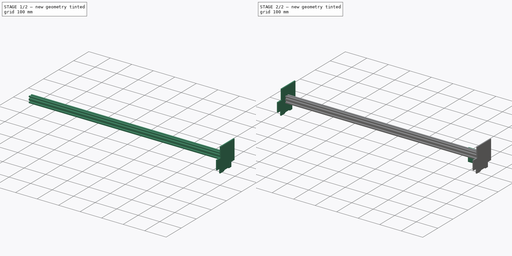
[diagram: build sequence overview — one tinted view per stage of 2, left to right]
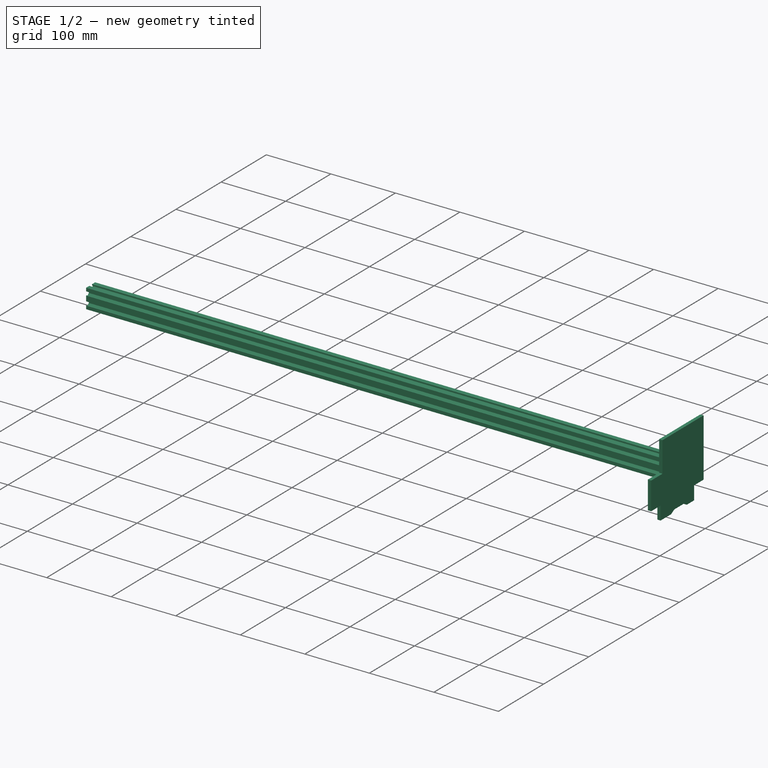
[diagram: stage 1 of 2 — iso view after this stage's code; geometry added in this stage tinted green]
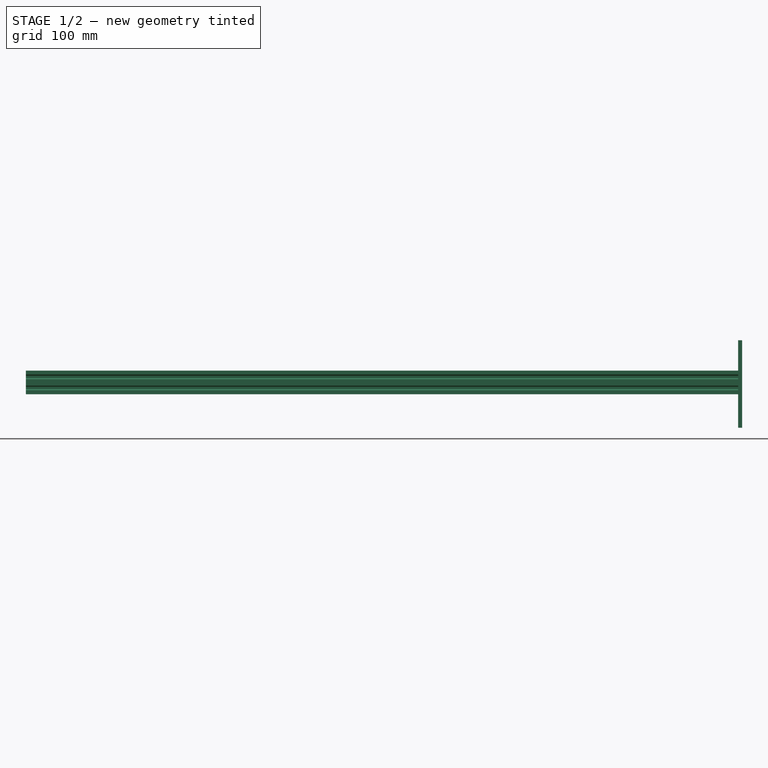
[diagram: stage 1 of 2 — front view after this stage's code; geometry added in this stage tinted green]
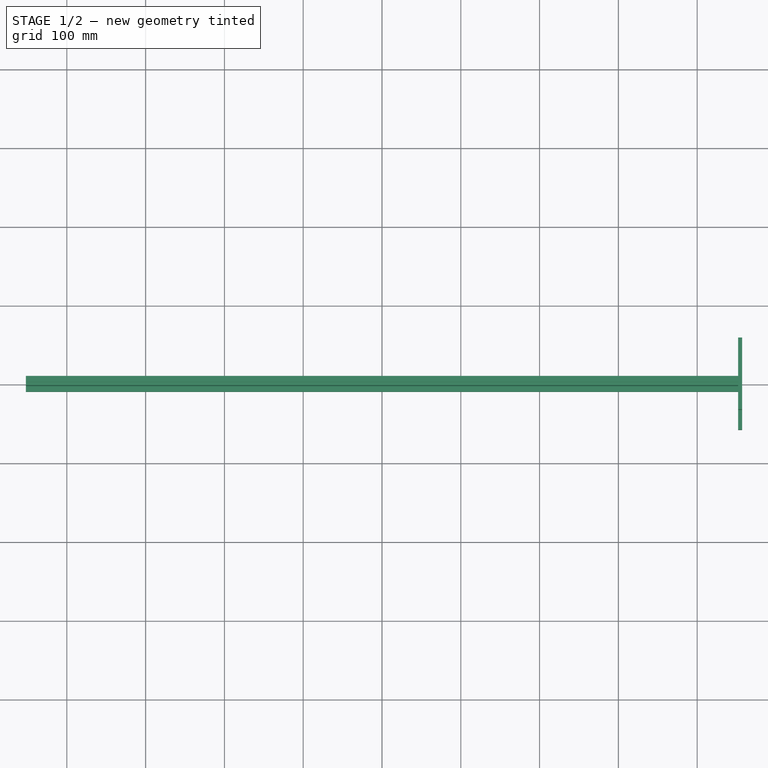
[diagram: stage 1 of 2 — top view after this stage's code; geometry added in this stage tinted green]
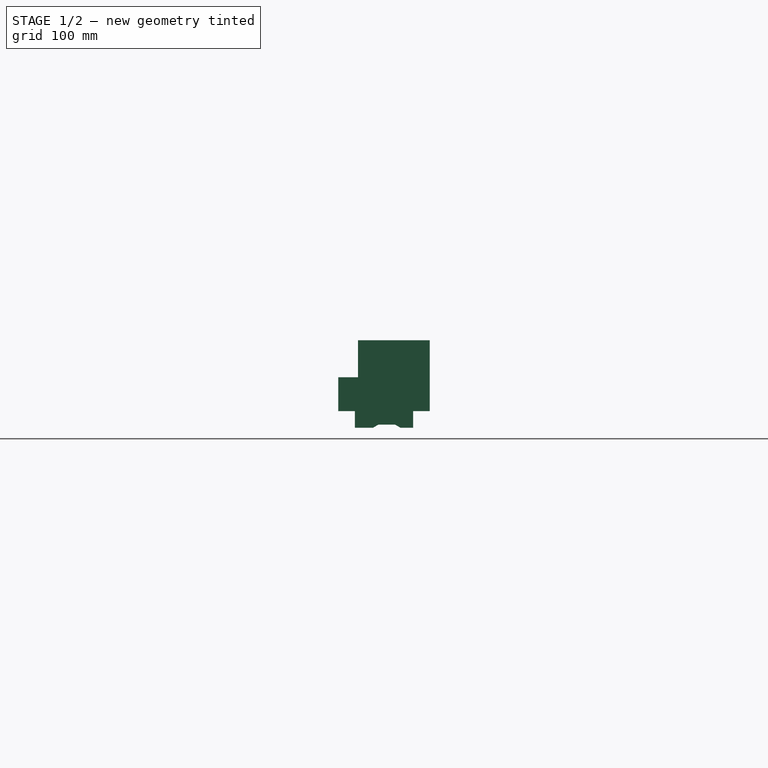
[diagram: stage 1 of 2 — right view after this stage's code; geometry added in this stage tinted green]
FCSTD DOCUMENT  (FreeCAD 1.1R40971 (Git))
Label: x-rail
License: All rights reserved
LicenseURL: http://en.wikipedia.org/wiki/All_rights_reserved
objects: Sketcher::SketchObject×3, PartDesign::Pad×3, PartDesign::Mirrored×1, PartDesign::Body×1, App::DocumentObjectGroup×1, App::Point×1
note: 18 computed .brp shape members not serialized (recipe doc carries the construction recipe); baked Part::Feature solids carry a one-line shape summary decoded from their .brp

FEATURE [Sketcher::SketchObject] Sketch
  ArcFitTolerance = 0
  ExternalTypes = [0]
  FullyConstrained = false
  MakeInternals = false
  MapMode = 5
  Placement = pos=(0,0,0) rot=(0.57735,0.57735,0.57735;2.0944rad)
  sketch-geometry (75):
    g0: LineSegment StartX=-10 StartY=30 StartZ=0 EndX=-3 EndY=30 EndZ=0
    g1: LineSegment StartX=10 StartY=30 StartZ=0 EndX=10 EndY=25 EndZ=0
    g2: LineSegment StartX=10 StartY=0 StartZ=0 EndX=3 EndY=0 EndZ=0
    g3: LineSegment StartX=-10 StartY=0 StartZ=0 EndX=-10 EndY=5 EndZ=0
    g4: LineSegment StartX=-3 StartY=0 StartZ=0 EndX=-3 EndY=1.5 EndZ=0
    g5: LineSegment StartX=-3 StartY=1.5 StartZ=0 EndX=-4.5 EndY=1.5 EndZ=0
    g6: LineSegment StartX=-4.5 StartY=1.5 StartZ=0 EndX=-4.5 EndY=3 EndZ=0
    g7: LineSegment StartX=-4.5 StartY=3 StartZ=0 EndX=-1.5 EndY=6 EndZ=0
    g8: LineSegment StartX=-1.5 StartY=6 StartZ=0 EndX=1.5 EndY=6 EndZ=0
    g9: LineSegment StartX=1.5 StartY=6 StartZ=0 EndX=4.5 EndY=3 EndZ=0
    g10: LineSegment StartX=4.5 StartY=3 StartZ=0 EndX=4.5 EndY=1.5 EndZ=0
    g11: LineSegment StartX=4.5 StartY=1.5 StartZ=0 EndX=3 EndY=1.5 EndZ=0
    g12: LineSegment StartX=3 StartY=1.5 StartZ=0 EndX=3 EndY=0 EndZ=0
    g13: LineSegment StartX=-3 StartY=0 StartZ=0 EndX=-10 EndY=0 EndZ=0
    g14: LineSegment StartX=-10 StartY=5 StartZ=0 EndX=-8.5 EndY=5 EndZ=0
    g15: LineSegment StartX=-8.5 StartY=5 StartZ=0 EndX=-8.5 EndY=3.5 EndZ=0
    g16: LineSegment StartX=-8.5 StartY=3.5 StartZ=0 EndX=-7 EndY=3.5 EndZ=0
    g17: LineSegment StartX=-7 StartY=3.5 StartZ=0 EndX=-4 EndY=6.5 EndZ=0
    g18: LineSegment StartX=-4 StartY=6.5 StartZ=0 EndX=-4 EndY=9.5 EndZ=0
    g19: LineSegment StartX=-4 StartY=9.5 StartZ=0 EndX=-7 EndY=12.5 EndZ=0
    g20: LineSegment StartX=-7 StartY=12.5 StartZ=0 EndX=-8.5 EndY=12.5 EndZ=0
    g21: LineSegment StartX=-8.5 StartY=12.5 StartZ=0 EndX=-8.5 EndY=11 EndZ=0
    g22: LineSegment StartX=-8.5 StartY=11 StartZ=0 EndX=-10 EndY=11 EndZ=0
    g23: LineSegment [constr] StartX=-9.99569 StartY=8 StartZ=0 EndX=10 EndY=8 EndZ=0
    g24: LineSegment StartX=-10 StartY=11 StartZ=0 EndX=-10 EndY=19 EndZ=0
    g25: LineSegment StartX=-10 StartY=25 StartZ=0 EndX=-8.5 EndY=25 EndZ=0
    g26: LineSegment StartX=-8.5 StartY=25 StartZ=0 EndX=-8.5 EndY=26.5 EndZ=0
    g27: LineSegment StartX=-8.5 StartY=26.5 StartZ=0 EndX=-7 EndY=26.5 EndZ=0
    g28: LineSegment StartX=-7 StartY=26.5 StartZ=0 EndX=-4 EndY=23.5 EndZ=0
    g29: LineSegment StartX=-4 StartY=23.5 StartZ=0 EndX=-4 EndY=20.5 EndZ=0
    g30: LineSegment StartX=-4 StartY=20.5 StartZ=0 EndX=-7 EndY=17.5 EndZ=0
    g31: LineSegment StartX=-7 StartY=17.5 StartZ=0 EndX=-8.5 EndY=17.5 EndZ=0
    g32: LineSegment StartX=-8.5 StartY=17.5 StartZ=0 EndX=-8.5 EndY=19 EndZ=0
    g33: LineSegment StartX=-8.5 StartY=19 StartZ=0 EndX=-10 EndY=19 EndZ=0
    g34: LineSegment [constr] StartX=-10 StartY=22 StartZ=0 EndX=9.99999 EndY=22 EndZ=0
    g35: LineSegment StartX=-10 StartY=25 StartZ=0 EndX=-10 EndY=30 EndZ=0
    g36: LineSegment StartX=-3 StartY=30 StartZ=0 EndX=-3 EndY=28.5 EndZ=0
    g37: LineSegment StartX=-3 StartY=28.5 StartZ=0 EndX=-4.5 EndY=28.5 EndZ=0
    g38: LineSegment StartX=-4.5 StartY=28.5 StartZ=0 EndX=-4.5 EndY=27 EndZ=0
    g39: LineSegment StartX=-4.5 StartY=27 StartZ=0 EndX=-1.5 EndY=24 EndZ=0
    g40: LineSegment StartX=-1.5 StartY=24 StartZ=0 EndX=1.5 EndY=24 EndZ=0
    g41: LineSegment StartX=1.5 StartY=24 StartZ=0 EndX=4.5 EndY=27 EndZ=0
    g42: LineSegment StartX=4.5 StartY=27 StartZ=0 EndX=4.5 EndY=28.5 EndZ=0
    g43: LineSegment StartX=4.5 StartY=28.5 StartZ=0 EndX=3 EndY=28.5 EndZ=0
    g44: LineSegment StartX=3 StartY=28.5 StartZ=0 EndX=3 EndY=30 EndZ=0
    g45: LineSegment StartX=3 StartY=30 StartZ=0 EndX=10 EndY=30 EndZ=0
    g46: LineSegment StartX=10 StartY=25 StartZ=0 EndX=8.5 EndY=25 EndZ=0
    g47: LineSegment StartX=8.5 StartY=25 StartZ=0 EndX=8.5 EndY=26.5 EndZ=0
    g48: LineSegment StartX=8.5 StartY=26.5 StartZ=0 EndX=7 EndY=26.5 EndZ=0
    g49: LineSegment StartX=7 StartY=26.5 StartZ=0 EndX=4 EndY=23.5 EndZ=0
    g50: LineSegment StartX=4 StartY=23.5 StartZ=0 EndX=4 EndY=20.5 EndZ=0
    g51: LineSegment StartX=4 StartY=20.5 StartZ=0 EndX=7 EndY=17.5 EndZ=0
    g52: LineSegment StartX=7 StartY=17.5 StartZ=0 EndX=8.5 EndY=17.5 EndZ=0
    g53: LineSegment StartX=8.5 StartY=17.5 StartZ=0 EndX=8.5 EndY=19 EndZ=0
    g54: LineSegment StartX=8.5 StartY=19 StartZ=0 EndX=10 EndY=19 EndZ=0
    g55: LineSegment StartX=10 StartY=19 StartZ=0 EndX=10 EndY=11 EndZ=0
    g56: LineSegment StartX=10 StartY=11 StartZ=0 EndX=8.5 EndY=11 EndZ=0
    g57: LineSegment StartX=8.5 StartY=11 StartZ=0 EndX=8.5 EndY=12.5 EndZ=0
    g58: LineSegment StartX=8.5 StartY=12.5 StartZ=0 EndX=7 EndY=12.5 EndZ=0
    g59: LineSegment StartX=7 StartY=12.5 StartZ=0 EndX=4 EndY=9.5 EndZ=0
    g60: LineSegment StartX=4 StartY=9.5 StartZ=0 EndX=4 EndY=6.5 EndZ=0
    g61: LineSegment StartX=4 StartY=6.5 StartZ=0 EndX=7 EndY=3.5 EndZ=0
    g62: LineSegment StartX=7 StartY=3.5 StartZ=0 EndX=8.5 EndY=3.5 EndZ=0
    g63: LineSegment StartX=8.5 StartY=3.5 StartZ=0 EndX=8.5 EndY=5 EndZ=0
    g64: LineSegment StartX=8.5 StartY=5 StartZ=0 EndX=10 EndY=5 EndZ=0
    g65: LineSegment StartX=10 StartY=5 StartZ=0 EndX=10 EndY=0 EndZ=0
    g66: Circle CenterX=0 CenterY=8 CenterZ=0 NormalX=0 NormalY=0 NormalZ=1 AngleXU=0 Radius=1.5
    g67: Circle CenterX=0 CenterY=22 CenterZ=0 NormalX=0 NormalY=0 NormalZ=1 AngleXU=0 Radius=1.5
    g68: LineSegment StartX=-7 StartY=15 StartZ=0 EndX=-2.71635 EndY=19.2836 EndZ=0
    g69: LineSegment StartX=-2.71635 StartY=19.2836 StartZ=0 EndX=2.71635 EndY=19.2836 EndZ=0
    g70: LineSegment StartX=2.71635 StartY=19.2836 StartZ=0 EndX=7 EndY=15 EndZ=0
    g71: LineSegment StartX=7 StartY=15 StartZ=0 EndX=2.71635 EndY=10.7164 EndZ=0
    g72: LineSegment StartX=2.71635 StartY=10.7164 StartZ=0 EndX=-2.71635 EndY=10.7164 EndZ=0
    g73: LineSegment StartX=-2.71635 StartY=10.7164 StartZ=0 EndX=-7 EndY=15 EndZ=0
    g74: LineSegment [constr] StartX=-10 StartY=15 StartZ=0 EndX=10 EndY=15 EndZ=0
  constraints (212):
    c: Coincident(g45,g1)
    c: Coincident(g65,g2)
    c: Coincident(g13,g3)
    c: Coincident(g35,g0)
    c: Horizontal(g0)
    c: Horizontal(g2)
    c: Vertical(g1)
    c: Vertical(g3)
    c: Symmetric(g65,g13,g-1)
    c: DistanceX(g13,g2) = 20
    c: DistanceY(g3,g35) = 30
    c: Vertical(g4)
    c: Coincident(g4,g5)
    c: Horizontal(g5)
    c: Coincident(g5,g6)
    c: Vertical(g6)
    c: Coincident(g6,g7)
    c: Coincident(g7,g8)
    c: Coincident(g8,g9)
    c: Coincident(g9,g10)
    c: Vertical(g10)
    c: Coincident(g10,g11)
    c: Horizontal(g11)
    c: Coincident(g11,g12)
    c: Vertical(g12)
    c: Equal(g6,g5)
    c: Equal(g5,g4)
    c: Equal(g4,g12)
    c: Equal(g12,g11)
    c: Equal(g11,g10)
    c: Distance(g4) = 1.5
    c: DistanceX(g4,g12) = 6
    c: Symmetric(g12,g4,g-2)
    c: Perpendicular(g9,g7)
    c: Symmetric(g7,g8,g-2)
    c: DistanceY(g4,g7) = 6
    c: Coincident(g13,g4)
    c: PointOnObject(g4,g-1)
    c: Coincident(g12,g2)
    c: Coincident(g14,g15)
    c: Coincident(g15,g16)
    c: Horizontal(g16)
    c: Coincident(g16,g17)
    c: Coincident(g17,g18)
    c: Vertical(g18)
    c: Coincident(g18,g19)
    c: Coincident(g19,g20)
    c: Coincident(g20,g21)
    c: Vertical(g21)
    c: Coincident(g21,g22)
    c: Horizontal(g22)
    c: Horizontal(g20)
    c: Vertical(g15)
    c: Equal(g6,g16)
    c: Equal(g16,g15)
    c: Equal(g15,g14)
    c: Equal(g14,g22)
    c: Equal(g22,g21)
    c: Equal(g21,g20)
    c: Perpendicular(g17,g19)
    c: PointOnObject(g23,g1)
    c: Symmetric(g22,g14,g23)
    c: Horizontal(g14)
    c: Symmetric(g17,g18,g23)
    c: Equal(g19,g7)
    c: Equal(g8,g18)
    c: Coincident(g3,g14)
    c: DistanceY(g3,g3) = 5
    c: Horizontal(g25)
    c: Coincident(g25,g26)
    c: Vertical(g26)
    c: Coincident(g26,g27)
    c: Coincident(g27,g28)
    c: Coincident(g28,g29)
    c: Vertical(g29)
    c: Coincident(g29,g30)
    c: Coincident(g30,g31)
    c: Horizontal(g31)
    c: Coincident(g31,g32)
    c: Coincident(g32,g33)
    c: Horizontal(g33)
    c: Symmetric(g29,g28,g34)
    c: Symmetric(g25,g33,g34)
    c: Vertical(g32)
    c: Horizontal(g27)
    c: Equal(g6,g31)
    c: Equal(g31,g32)
    c: Equal(g32,g33)
    c: Equal(g33,g25)
    c: Equal(g25,g26)
    c: Equal(g26,g27)
    c: Equal(g8,g29)
    c: Equal(g30,g7)
    c: Coincident(g35,g25)
    c: Coincident(g24,g33)
    c: Equal(g35,g3)
    c: Vertical(g24)
    c: Vertical(g35)
    c: Coincident(g22,g24)
    c: Perpendicular(g30,g28)
    c: Vertical(g36)
    c: Coincident(g36,g37)
    c: Horizontal(g37)
    c: Coincident(g37,g38)
    c: Vertical(g38)
    c: Coincident(g38,g39)
    c: Coincident(g39,g40)
    c: Horizontal(g40)
    c: Coincident(g40,g41)
    c: Coincident(g41,g42)
    c: Vertical(g42)
    c: Coincident(g42,g43)
    c: Horizontal(g43)
    c: Coincident(g43,g44)
    c: Vertical(g44)
    c: Coincident(g0,g36)
    c: Coincident(g45,g44)
    c: Symmetric(g0,g44,g-2)
    c: Equal(g38,g37)
    c: Equal(g37,g36)
    c: Equal(g36,g44)
    c: Equal(g44,g43)
    c: Equal(g43,g42)
    c: Equal(g0,g45)
    c: Equal(g39,g41)
    c: Equal(g41,g7)
    c: Perpendicular(g41,g39)
    c: Equal(g38,g6)
    c: Equal(g40,g8)
    c: Horizontal(g46)
    c: Coincident(g46,g47)
    c: Vertical(g47)
    c: Coincident(g47,g48)
    c: Horizontal(g48)
    c: Coincident(g48,g49)
    c: Coincident(g49,g50)
    c: Coincident(g50,g51)
    c: Coincident(g51,g52)
    c: Horizontal(g52)
    c: Coincident(g52,g53)
    c: Vertical(g53)
    c: Coincident(g53,g54)
    c: PointOnObject(g54,g1)
    c: Horizontal(g54)
    c: Symmetric(g49,g50,g34)
    c: Perpendicular(g51,g49)
    c: Equal(g48,g47)
    c: Equal(g47,g46)
    c: Equal(g46,g54)
    c: Equal(g54,g53)
    c: Equal(g53,g52)
    c: Equal(g52,g6)
    c: Equal(g49,g51)
    c: Equal(g8,g50)
    c: Coincident(g1,g46)
    c: PointOnObject(g55,g54)
    c: Equal(g51,g7)
    c: Equal(g1,g35)
    c: Horizontal(g56)
    c: Coincident(g56,g57)
    c: Vertical(g57)
    c: Coincident(g57,g58)
    c: Horizontal(g58)
    c: Coincident(g58,g59)
    c: Coincident(g59,g60)
    c: Coincident(g60,g61)
    c: Coincident(g61,g62)
    c: Horizontal(g62)
    c: Coincident(g62,g63)
    c: Vertical(g63)
    c: Coincident(g63,g64)
    c: Horizontal(g64)
    c: Coincident(g65,g64)
    c: Coincident(g55,g56)
    c: Symmetric(g55,g64,g23)
    c: Symmetric(g59,g60,g23)
    c: Equal(g58,g57)
    c: Equal(g57,g56)
    c: Equal(g56,g64)
    c: Equal(g64,g63)
    c: Equal(g63,g62)
    c: Equal(g62,g6)
    c: Equal(g8,g60)
    c: Vertical(g55)
    c: Vertical(g65)
    c: Equal(g65,g1)
    c: Equal(g61,g7)
    c: PointOnObject(g67,g-2)
    c: PointOnObject(g34,g3)
    c: Diameter(g66) = 3
    c: Coincident(g68,g69)
    c: Horizontal(g69)
    c: Coincident(g69,g70)
    c: Coincident(g70,g71)
    c: Coincident(g71,g72)
    c: Coincident(g72,g73)
    c: Coincident(g73,g68)
    c: Perpendicular(g73,g68)
    c: Perpendicular(g71,g70)
    c: Parallel(g59,g71)
    c: Parallel(g73,g19)
    c: Symmetric(g71,g72,g-2)
    c: Equal(g71,g73)
    c: PointOnObject(g74,g24)
    c: PointOnObject(g74,g55)
    c: Symmetric(g0,g3,g74)
    c: PointOnObject(g70,g74)
    c: Equal(g66,g67)
    c: Symmetric(g67,g66,g74)
    c: Equal(g72,g69)
    c: Vertical(g30,g68)
    c: DistanceY(g66,g67) = 14
FEATURE [PartDesign::Pad] Pad
  Direction = (1,1e-16,-1e-16)
  Length = 904
  Length2 = 10
  Midplane = true
  Placement = pos=(0,0,0) rot=(0.57735,0.57735,0.57735;2.0944rad)
  Profile = -> Sketch
  ReferenceAxis = -> Sketch [N_Axis]
  Suppressed = false
  Type = 0
FEATURE [Sketcher::SketchObject] Sketch001
  ArcFitTolerance = 0
  ExternalTypes = [0]
  FullyConstrained = true
  MakeInternals = false
  MapMode = 5
  Placement = pos=(452,0,0) rot=(0.57735,0.57735,0.57735;2.0944rad)
  sketch-geometry (14):
    g0: LineSegment StartX=-33 StartY=68.5 StartZ=0 EndX=-33 EndY=21.5 EndZ=0
    g1: LineSegment StartX=-33 StartY=21.5 StartZ=0 EndX=-58 EndY=21.5 EndZ=0
    g2: LineSegment StartX=-58 StartY=21.5 StartZ=0 EndX=-58 EndY=-21.5 EndZ=0
    g3: LineSegment StartX=-58 StartY=-21.5 StartZ=0 EndX=-37 EndY=-21.5 EndZ=0
    g4: LineSegment StartX=-37 StartY=-21.5 StartZ=0 EndX=-37 EndY=-42.5 EndZ=0
    g5: LineSegment StartX=-37 StartY=-42.5 StartZ=0 EndX=-13.9282 EndY=-42.5 EndZ=0
    g6: LineSegment StartX=-13.9282 StartY=-42.5 StartZ=0 EndX=-7 EndY=-38.5 EndZ=0
    g7: LineSegment StartX=-7 StartY=-38.5 StartZ=0 EndX=14 EndY=-38.5 EndZ=0
    g8: LineSegment StartX=14 StartY=-38.5 StartZ=0 EndX=20.9282 EndY=-42.5 EndZ=0
    g9: LineSegment StartX=20.9282 StartY=-42.5 StartZ=0 EndX=37 EndY=-42.5 EndZ=0
    g10: LineSegment StartX=37 StartY=-42.5 StartZ=0 EndX=37 EndY=-21.5 EndZ=0
    g11: LineSegment StartX=37 StartY=-21.5 StartZ=0 EndX=58 EndY=-21.5 EndZ=0
    g12: LineSegment StartX=58 StartY=-21.5 StartZ=0 EndX=58 EndY=68.5 EndZ=0
    g13: LineSegment StartX=58 StartY=68.5 StartZ=0 EndX=-33 EndY=68.5 EndZ=0
  constraints (40):
    c: Vertical(g0)
    c: Coincident(g0,g1)
    c: Horizontal(g1)
    c: Coincident(g1,g2)
    c: Coincident(g2,g3)
    c: Horizontal(g3)
    c: Coincident(g3,g4)
    c: Vertical(g4)
    c: Coincident(g4,g5)
    c: Horizontal(g5)
    c: Coincident(g5,g6)
    c: Coincident(g6,g7)
    c: Horizontal(g7)
    c: Coincident(g7,g8)
    c: Coincident(g8,g9)
    c: Horizontal(g9)
    c: Coincident(g9,g10)
    c: Coincident(g10,g11)
    c: Horizontal(g11)
    c: Coincident(g11,g12)
    c: Vertical(g12)
    c: Coincident(g12,g13)
    c: Coincident(g13,g0)
    c: Horizontal(g13)
    c: Vertical(g10)
    c: DistanceX(g13,g13) = 91
    c: DistanceY(g12,g12) = 90
    c: DistanceX(g2,g11) = 116
    c: DistanceX(g3,g3) = 21
    c: DistanceX(g4,g9) = 74
    c: DistanceY(g10,g10) = 21
    c: Equal(g4,g10)
    c: DistanceY(g2,g2) = 43
    c: DistanceY(g6,g6) = 4
    c: DistanceX(g7,g7) = 21
    c: DistanceX(g7,g9) = 23
    c: Angle(g9,g8) = 2.61799
    c: Equal(g6,g8)
    c: Symmetric(g11,g2,g-2)
    c: Symmetric(g1,g2,g-1)
FEATURE [PartDesign::Pad] Pad001
  BaseFeature = -> Pad
  Direction = (1,1e-16,-1e-16)
  Length = 5.08
  Length2 = 10
  Placement = pos=(0,0,0) rot=(0.57735,0.57735,0.57735;2.0944rad)
  Profile = -> Sketch001
  ReferenceAxis = -> Sketch001 [N_Axis]
  Suppressed = false
  Type = 0
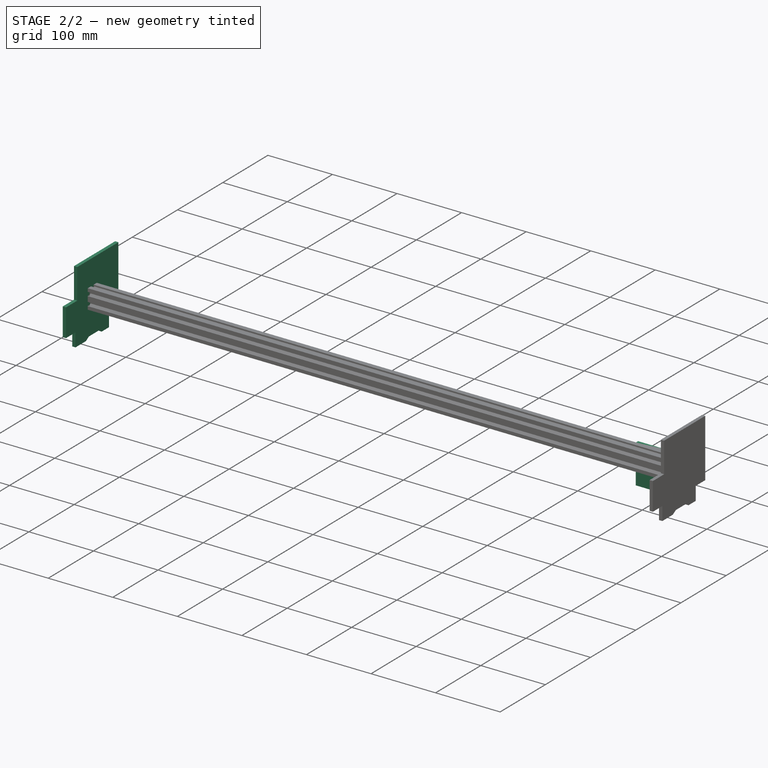
[diagram: stage 2 of 2 — iso view after this stage's code; geometry added in this stage tinted green]
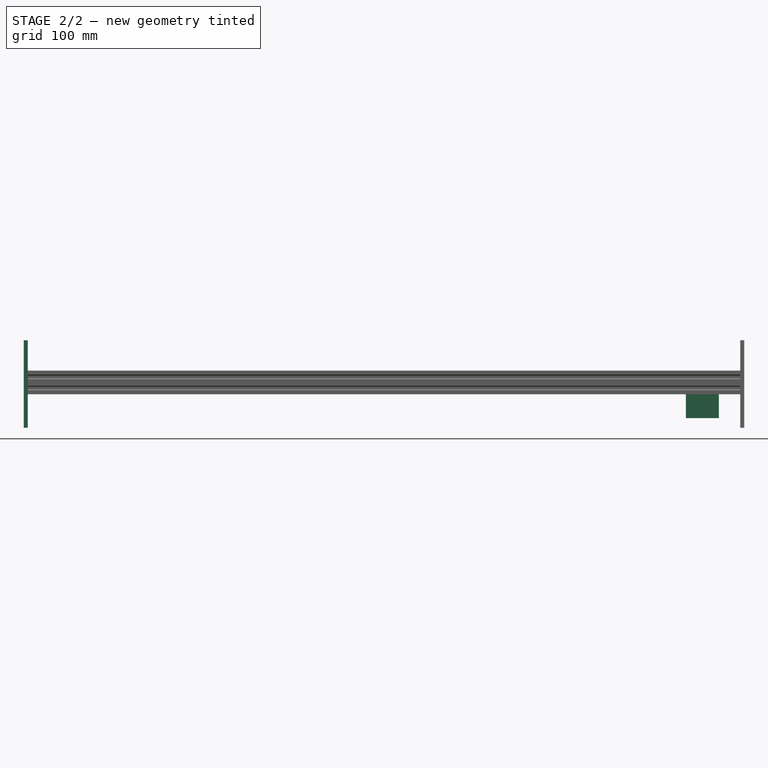
[diagram: stage 2 of 2 — front view after this stage's code; geometry added in this stage tinted green]
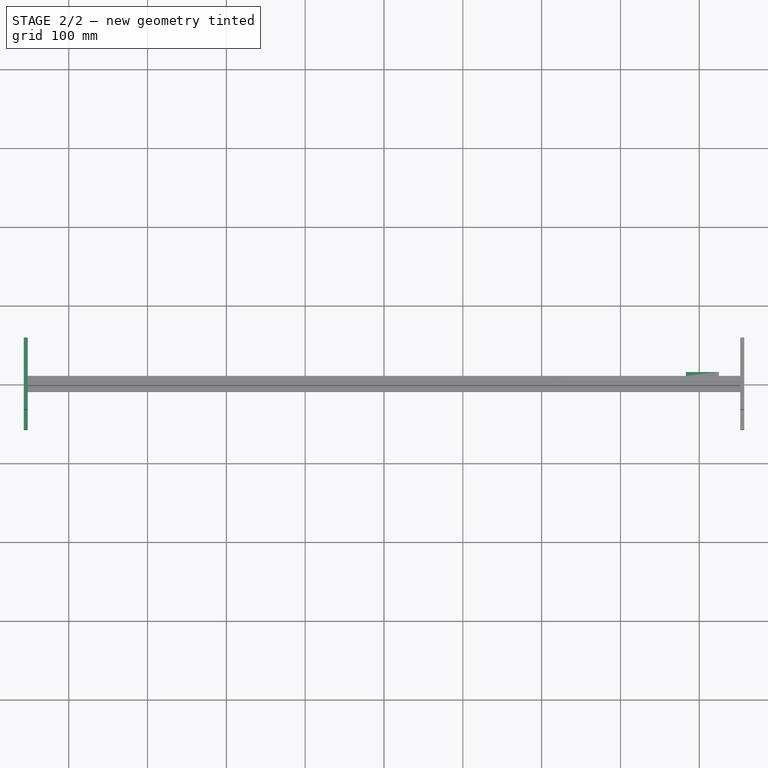
[diagram: stage 2 of 2 — top view after this stage's code; geometry added in this stage tinted green]
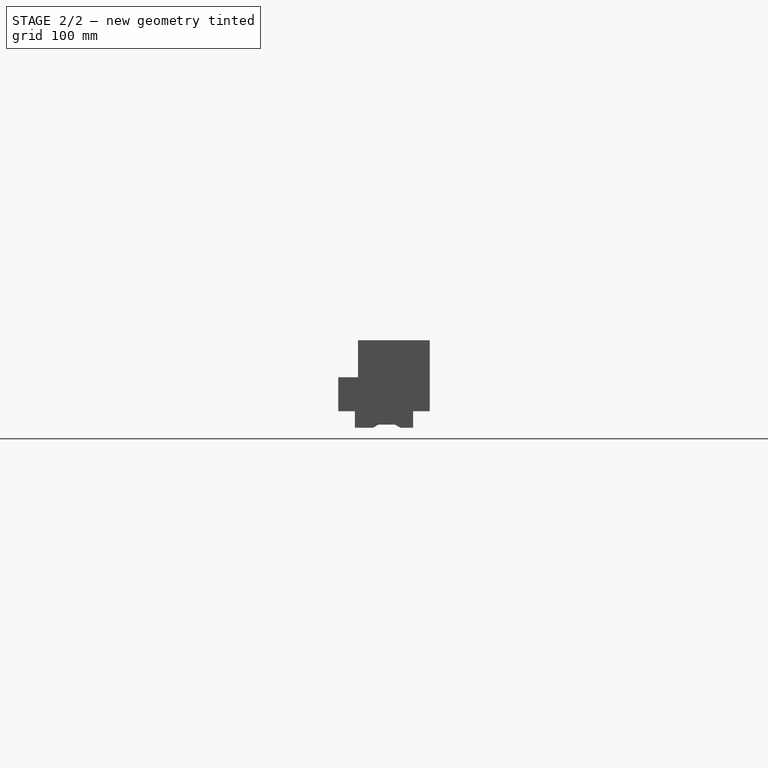
[diagram: stage 2 of 2 — right view after this stage's code; geometry added in this stage tinted green]
FEATURE [PartDesign::Mirrored] Mirrored
  BaseFeature = -> Pad001
  MirrorPlane = -> YZ_Plane
  Originals = -> [Pad001]
  Placement = pos=(0,0,0) rot=(0.57735,0.57735,0.57735;2.0944rad)
  Suppressed = false
  TransformMode = 0
FEATURE [Sketcher::SketchObject] Sketch002
  ArcFitTolerance = 0
  ExternalTypes = [0]
  FullyConstrained = true
  MakeInternals = false
  MapMode = 5
  Placement = pos=(0,10,0) rot=(1,0,0;1.5708rad)
  sketch-geometry (4):
    g0: LineSegment StartX=383 StartY=29.7 StartZ=0 EndX=425 EndY=29.7 EndZ=0
    g1: LineSegment StartX=425 StartY=29.7 StartZ=0 EndX=425 EndY=-30.3 EndZ=0
    g2: LineSegment StartX=425 StartY=-30.3 StartZ=0 EndX=383 EndY=-30.3 EndZ=0
    g3: LineSegment StartX=383 StartY=-30.3 StartZ=0 EndX=383 EndY=29.7 EndZ=0
  constraints (12):
    c: Coincident(g0,g1)
    c: Coincident(g1,g2)
    c: Coincident(g2,g3)
    c: Coincident(g3,g0)
    c: Horizontal(g0)
    c: Horizontal(g2)
    c: Vertical(g1)
    c: Vertical(g3)
    c: DistanceY(g3,g3) = 60
    c: DistanceX(g0,g0) = 42
    c: DistanceY(g-1,g0) = 29.7
    c: DistanceX(g-1,g0) = 425
FEATURE [PartDesign::Pad] Pad002
  BaseFeature = -> Mirrored
  Direction = (0,-1,2e-16)
  Length = 5
  Length2 = 10
  Placement = pos=(0,0,0) rot=(0.57735,0.57735,0.57735;2.0944rad)
  Profile = -> Sketch002
  ReferenceAxis = -> Sketch002 [N_Axis]
  Reversed = true
  Suppressed = false
  Type = 0
FEATURE [PartDesign::Body] Body
  AllowCompound = false
  Group = -> [Sketch,Pad,Sketch001,Pad001,Mirrored,Sketch002,Pad002]
  Origin = -> Origin
  Tip = -> Pad002
FEATURE [App::DocumentObjectGroup] Parts
  Group = -> [Body]
FEATURE [App::Point] Origin001  label="Origin"
  Role = Origin
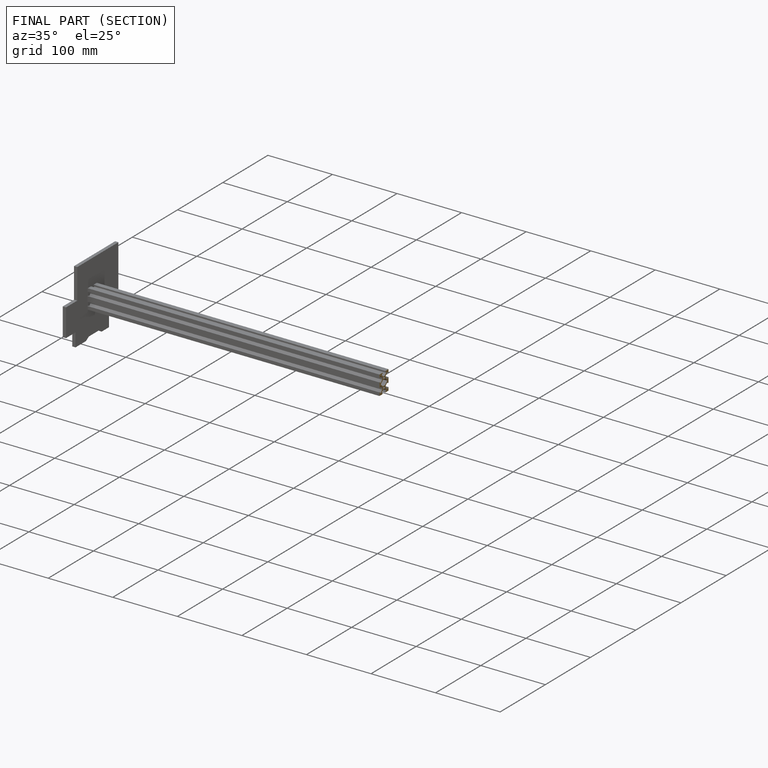
[diagram: finished part — half-section view (interior)]
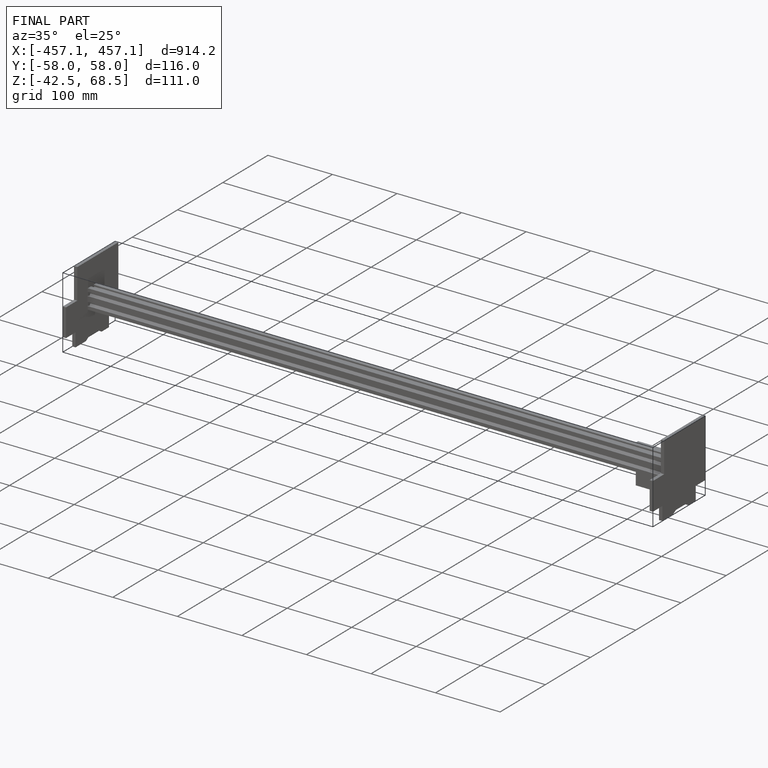
[diagram: finished part — iso view with bounding-box wireframe]
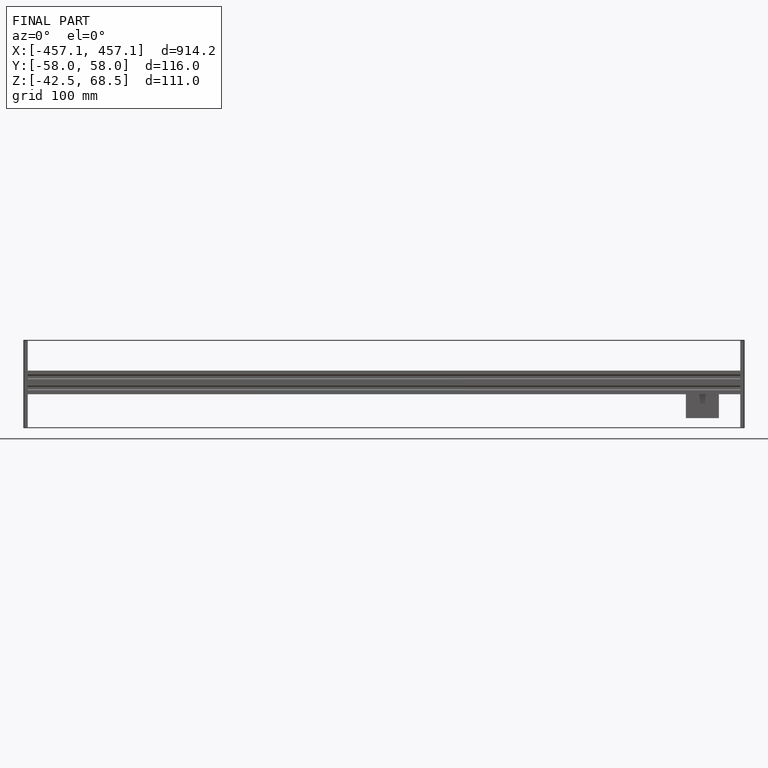
[diagram: finished part — front view with bounding-box wireframe]
